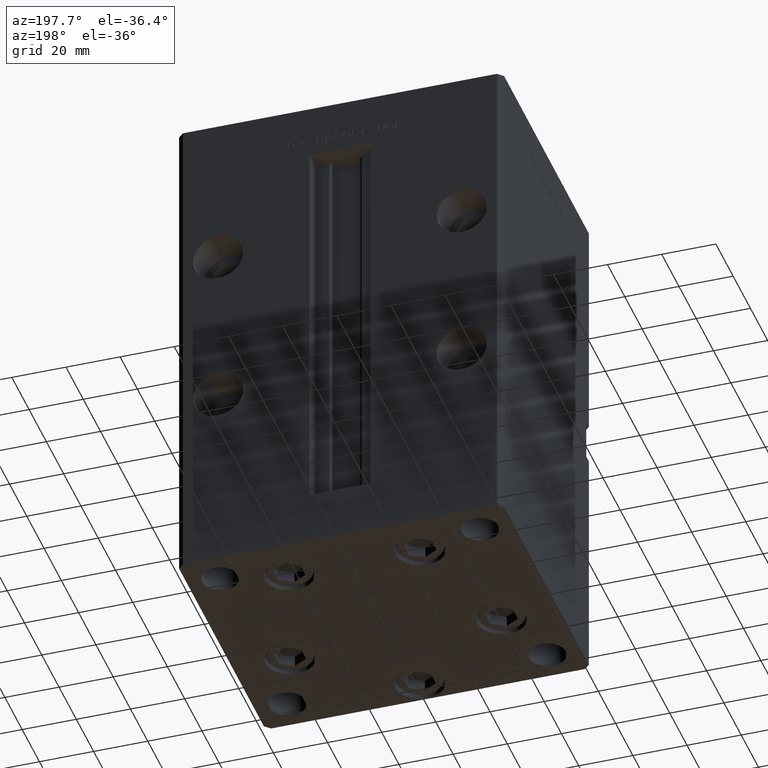
[diagram: clean part render]
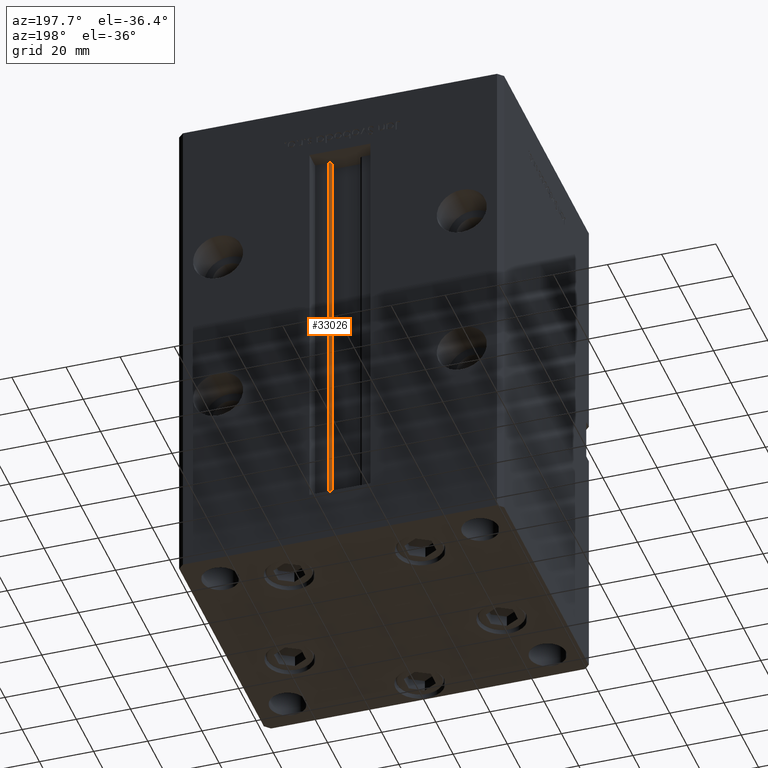
[diagram: same view with one face highlighted and labeled with its STEP entity id]
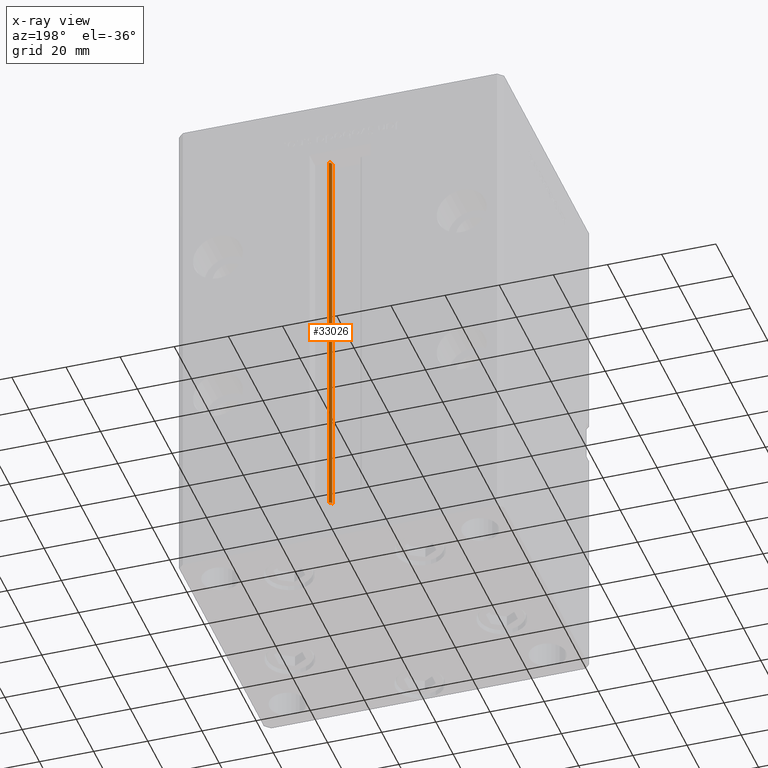
[diagram: x-ray of the same camera — body ghosted, the highlighted face saturated]
A machine part, auxiliary view. The second image highlights one B-rep face of the part: STEP entity #33026.
The next image is the same camera in x-ray: the body ghosted, the highlighted face saturated — about 0% of this face is hidden behind the body in this view.
In plain terms, the highlighted cylindrical surface (edge-blend (fillet) strip) has radius 0.9333 mm, axis along (0, 0, 1).
Its self-contained STEP definition (entity closure, byte-faithful):
#11 = FACE_OUTER_BOUND ( 'NONE', #42854, .T. ) ;
#3280 = VERTEX_POINT ( 'NONE', #25867 ) ;
#5041 = AXIS2_PLACEMENT_3D ( 'NONE', #36795, #44829, #7584 ) ;
#7584 = DIRECTION ( 'NONE',  ( 1.000000000000000000, 0.000000000000000000, 0.000000000000000000 ) ) ;
#8968 = EDGE_CURVE ( 'NONE', #17730, #32463, #11840, .T. ) ;
#9570 = CYLINDRICAL_SURFACE ( 'NONE', #30373, 0.9333333333340008142 ) ;
#11840 = CIRCLE ( 'NONE', #5041, 0.9333333333340008142 ) ;
#14955 = VECTOR ( 'NONE', #40371, 1000.000000000000000 ) ;
#16365 = CARTESIAN_POINT ( 'NONE',  ( 6.183333333333997928, 43.56666666666600207, 0.000000000000000000 ) ) ;
#17730 = VERTEX_POINT ( 'NONE', #18654 ) ;
#18626 = CARTESIAN_POINT ( 'NONE',  ( 6.183333333333997928, 44.50000000000000711, 0.000000000000000000 ) ) ;
#18654 = CARTESIAN_POINT ( 'NONE',  ( 5.375042956467945388, 43.09999999999899956, 0.000000000000000000 ) ) ;
#21609 = CARTESIAN_POINT ( 'NONE',  ( 6.183333333333997928, 44.50000000000000711, 0.000000000000000000 ) ) ;
#22277 = EDGE_CURVE ( 'NONE', #42975, #3280, #40374, .T. ) ;
#22560 = ORIENTED_EDGE ( 'NONE', *, *, #30263, .T. ) ;
#24103 = AXIS2_PLACEMENT_3D ( 'NONE', #41645, #29309, #38421 ) ;
#24280 = CARTESIAN_POINT ( 'NONE',  ( 5.375042956467945388, 43.09999999999899956, 0.000000000000000000 ) ) ;
#25096 = DIRECTION ( 'NONE',  ( -0.000000000000000000, -0.000000000000000000, 1.000000000000000000 ) ) ;
#25496 = CARTESIAN_POINT ( 'NONE',  ( 5.375042956467942723, 43.09999999999899956, 148.5000000000000000 ) ) ;
#25867 = CARTESIAN_POINT ( 'NONE',  ( 6.183333333333997928, 44.50000000000000711, 148.5000000000000000 ) ) ;
#26630 = ORIENTED_EDGE ( 'NONE', *, *, #8968, .F. ) ;
#29309 = DIRECTION ( 'NONE',  ( 0.000000000000000000, 0.000000000000000000, -1.000000000000000000 ) ) ;
#30263 = EDGE_CURVE ( 'NONE', #17730, #42975, #48420, .T. ) ;
#30373 = AXIS2_PLACEMENT_3D ( 'NONE', #16365, #34242, #49059 ) ;
#32463 = VERTEX_POINT ( 'NONE', #18626 ) ;
#33026 = ADVANCED_FACE ( 'NONE', ( #11 ), #9570, .T. ) ;
#34242 = DIRECTION ( 'NONE',  ( -0.000000000000000000, -0.000000000000000000, 1.000000000000000000 ) ) ;
#36795 = CARTESIAN_POINT ( 'NONE',  ( 6.183333333333997928, 43.56666666666600207, 0.000000000000000000 ) ) ;
#37023 = ORIENTED_EDGE ( 'NONE', *, *, #22277, .T. ) ;
#38421 = DIRECTION ( 'NONE',  ( 1.000000000000000000, 0.000000000000000000, 0.000000000000000000 ) ) ;
#40371 = DIRECTION ( 'NONE',  ( -0.000000000000000000, -0.000000000000000000, 1.000000000000000000 ) ) ;
#40374 = CIRCLE ( 'NONE', #24103, 0.9333333333340008142 ) ;
#41645 = CARTESIAN_POINT ( 'NONE',  ( 6.183333333333997928, 43.56666666666600207, 148.5000000000000000 ) ) ;
#42178 = ORIENTED_EDGE ( 'NONE', *, *, #44719, .F. ) ;
#42854 = EDGE_LOOP ( 'NONE', ( #42178, #26630, #22560, #37023 ) ) ;
#42975 = VERTEX_POINT ( 'NONE', #25496 ) ;
#44719 = EDGE_CURVE ( 'NONE', #32463, #3280, #50290, .T. ) ;
#44829 = DIRECTION ( 'NONE',  ( -0.000000000000000000, -0.000000000000000000, -1.000000000000000000 ) ) ;
#46911 = VECTOR ( 'NONE', #25096, 1000.000000000000000 ) ;
#48420 = LINE ( 'NONE', #24280, #14955 ) ;
#49059 = DIRECTION ( 'NONE',  ( 1.000000000000000000, 0.000000000000000000, 0.000000000000000000 ) ) ;
#50290 = LINE ( 'NONE', #21609, #46911 ) ;